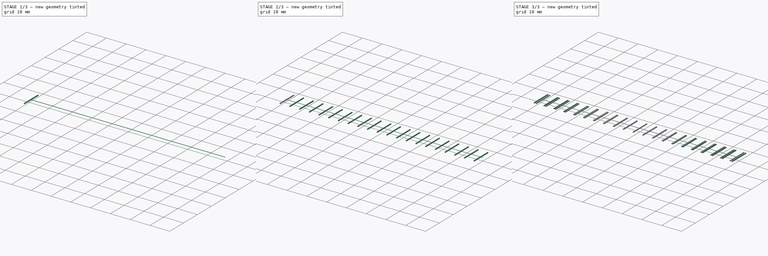
[diagram: build sequence overview — one tinted view per stage of 3, left to right]
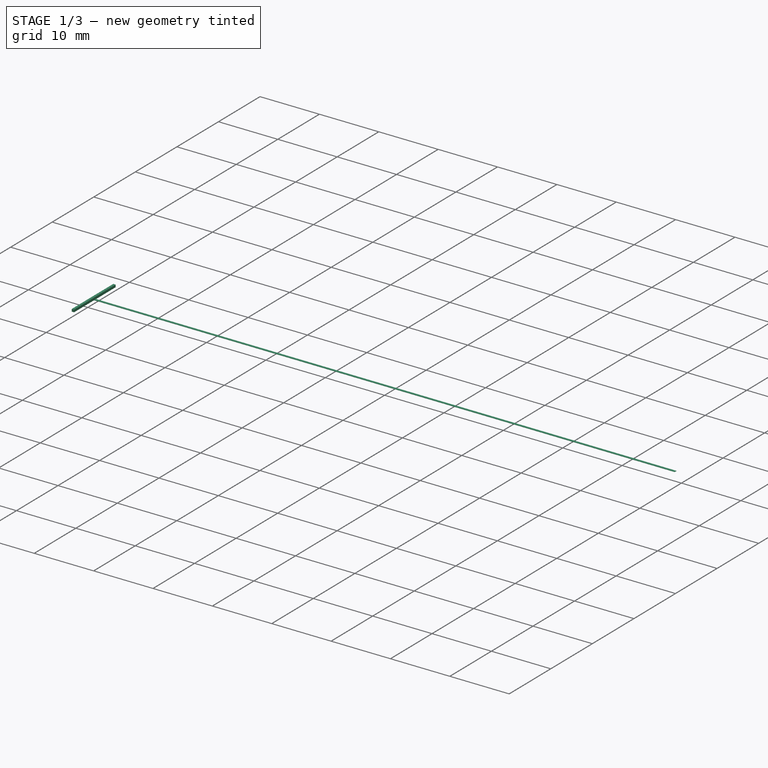
[diagram: stage 1 of 3 — iso view after this stage's code; geometry added in this stage tinted green]
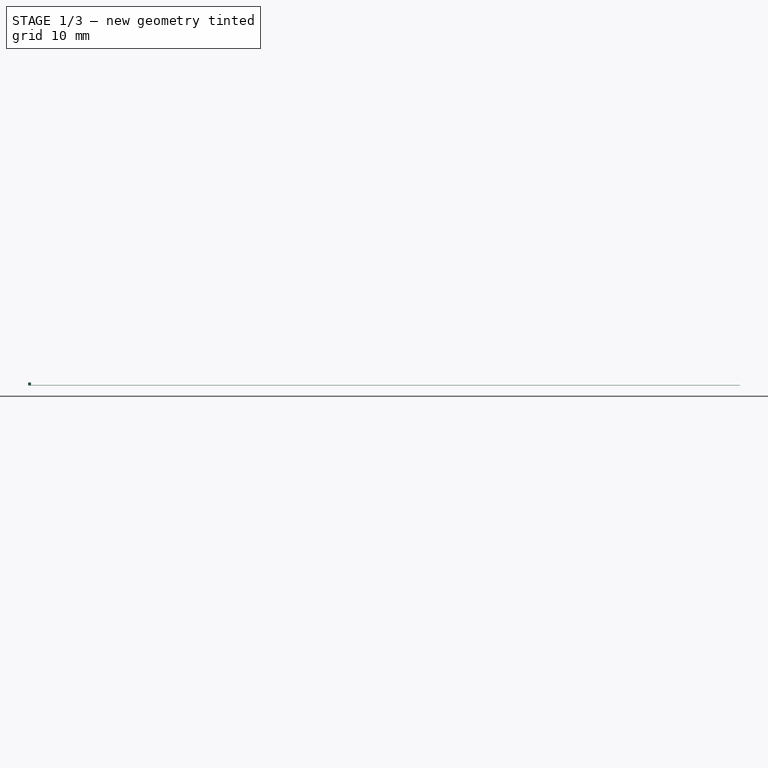
[diagram: stage 1 of 3 — front view after this stage's code; geometry added in this stage tinted green]
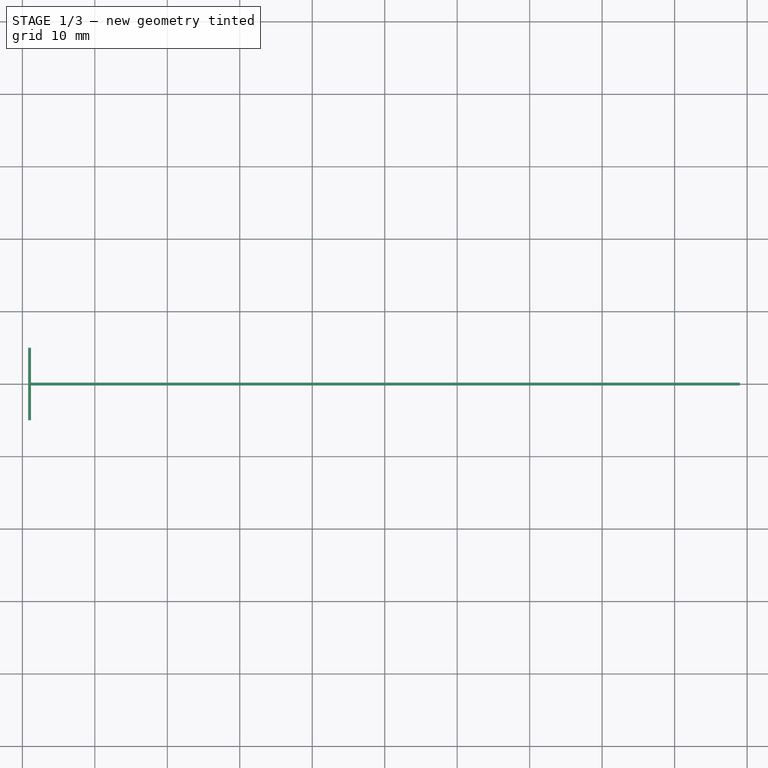
[diagram: stage 1 of 3 — top view after this stage's code; geometry added in this stage tinted green]
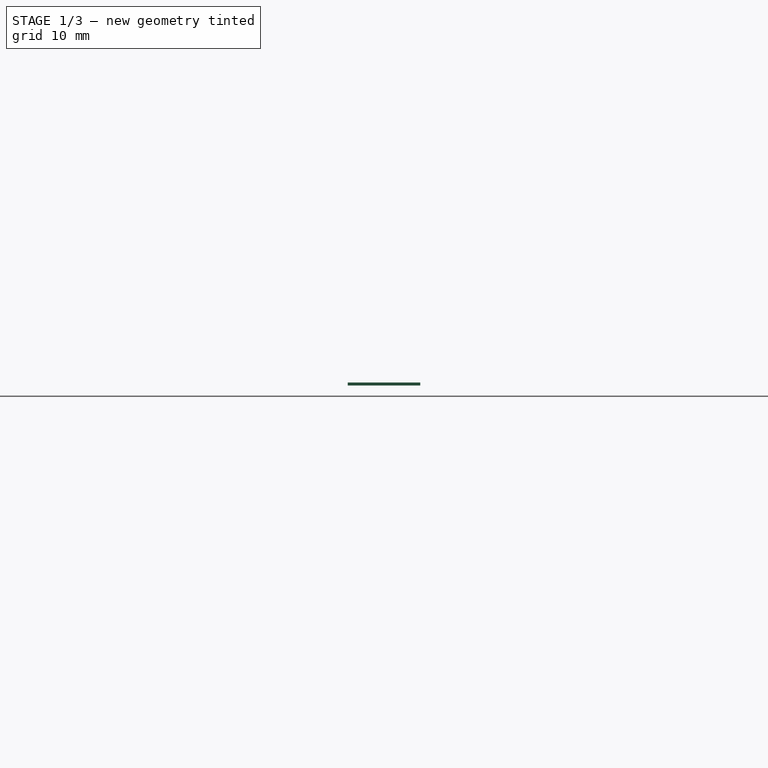
[diagram: stage 1 of 3 — right view after this stage's code; geometry added in this stage tinted green]
FCSTD DOCUMENT  (FreeCAD 0.18.4R)
Label: AlignmantTest
License: All rights reserved
LicenseURL: http://en.wikipedia.org/wiki/All_rights_reserved
objects: Sketcher::SketchObject×4, PartDesign::Pad×4, PartDesign::LinearPattern×2, PartDesign::Body×2
note: 16 computed .brp shape members not serialized (recipe doc carries the construction recipe); baked Part::Feature solids carry a one-line shape summary decoded from their .brp

FEATURE [PartDesign::Body] Body
  Group = -> [Sketch,Pad,Sketch001,Pad001,LinearPattern]
  Origin = -> Origin
  Placement = pos=(0,5.1,0) rot=(0,0,1;0rad)
  Tip = -> LinearPattern
FEATURE [Sketcher::SketchObject] Sketch002
  MapMode = 5
  Support = -> [XY_Plane001]
  sketch-geometry (9):
    g0: LineSegment [constr] StartX=-49.2 StartY=5 StartZ=0 EndX=-48.8 EndY=5 EndZ=0
    g1: LineSegment [constr] StartX=-48.8 StartY=5 StartZ=0 EndX=-48.8 EndY=-5 EndZ=0
    g2: LineSegment [constr] StartX=-48.8 StartY=-5 StartZ=0 EndX=-49.2 EndY=-5 EndZ=0
    g3: LineSegment [constr] StartX=-49.2 StartY=-5 StartZ=0 EndX=-49.2 EndY=5 EndZ=0
    g4: LineSegment StartX=-49 StartY=0.2 StartZ=0 EndX=49 EndY=0.2 EndZ=0
    g5: LineSegment StartX=49 StartY=0.2 StartZ=0 EndX=49 EndY=-0.2 EndZ=0
    g6: LineSegment StartX=49 StartY=-0.2 StartZ=0 EndX=-49 EndY=-0.2 EndZ=0
    g7: LineSegment StartX=-49 StartY=-0.2 StartZ=0 EndX=-49 EndY=0.2 EndZ=0
    g8: GeomPoint X=-49 Y=5 Z=0
  constraints (23):
    c: Coincident(g0,g1)
    c: Coincident(g1,g2)
    c: Coincident(g2,g3)
    c: Coincident(g3,g0)
    c: Horizontal(g2)
    c: Vertical(g1)
    c: DistanceX(g0,g0) = 0.4
    c: DistanceY(g3,g3) = 10
    c: Coincident(g4,g5)
    c: Coincident(g5,g6)
    c: Coincident(g6,g7)
    c: Coincident(g7,g4)
    c: Horizontal(g4)
    c: Horizontal(g6)
    c: Vertical(g7)
    c: Equal(g7,g2)
    c: DistanceX(g6,g6) = 98  'Length'
    c: Symmetric(g4,g5,g-1)
    c: Vertical(g5)
    c: Horizontal(g0)
    c: Symmetric(g0,g2,g-1)
    c: Symmetric(g0,g0,g8)
    c: PointOnObject(g8,g7)
FEATURE [Sketcher::SketchObject] Sketch003
  MapMode = 5
  Support = -> [XY_Plane001]
  expr: Constraints[16] = Sketch002.Constraints.Length
  sketch-geometry (9):
    g0: LineSegment StartX=-49.2 StartY=5 StartZ=0 EndX=-48.8 EndY=5 EndZ=0
    g1: LineSegment StartX=-48.8 StartY=5 StartZ=0 EndX=-48.8 EndY=-5 EndZ=0
    g2: LineSegment StartX=-48.8 StartY=-5 StartZ=0 EndX=-49.2 EndY=-5 EndZ=0
    g3: LineSegment StartX=-49.2 StartY=-5 StartZ=0 EndX=-49.2 EndY=5 EndZ=0
    g4: LineSegment [constr] StartX=-49 StartY=0.2 StartZ=0 EndX=49 EndY=0.2 EndZ=0
    g5: LineSegment [constr] StartX=49 StartY=0.2 StartZ=0 EndX=49 EndY=-0.2 EndZ=0
    g6: LineSegment [constr] StartX=49 StartY=-0.2 StartZ=0 EndX=-49 EndY=-0.2 EndZ=0
    g7: LineSegment [constr] StartX=-49 StartY=-0.2 StartZ=0 EndX=-49 EndY=0.2 EndZ=0
    g8: GeomPoint X=-49 Y=5 Z=0
  constraints (23):
    c: Coincident(g0,g1)
    c: Coincident(g1,g2)
    c: Coincident(g2,g3)
    c: Coincident(g3,g0)
    c: Horizontal(g2)
    c: Vertical(g1)
    c: DistanceX(g0,g0) = 0.4
    c: DistanceY(g3,g3) = 10
    c: Coincident(g4,g5)
    c: Coincident(g5,g6)
    c: Coincident(g6,g7)
    c: Coincident(g7,g4)
    c: Horizontal(g4)
    c: Horizontal(g6)
    c: Vertical(g7)
    c: Equal(g7,g2)
    c: DistanceX(g6,g6) = 98
    c: Symmetric(g4,g5,g-1)
    c: Vertical(g5)
    c: Horizontal(g0)
    c: Symmetric(g0,g2,g-1)
    c: Symmetric(g0,g0,g8)
    c: PointOnObject(g8,g7)
FEATURE [PartDesign::Pad] Pad002
  Length = 0.05
  Length2 = 100
  Profile = -> Sketch002
  Type = 0
FEATURE [PartDesign::Pad] Pad003
  BaseFeature = -> Pad002
  Length = 0.4
  Length2 = 100
  Profile = -> Sketch003
  Type = 0
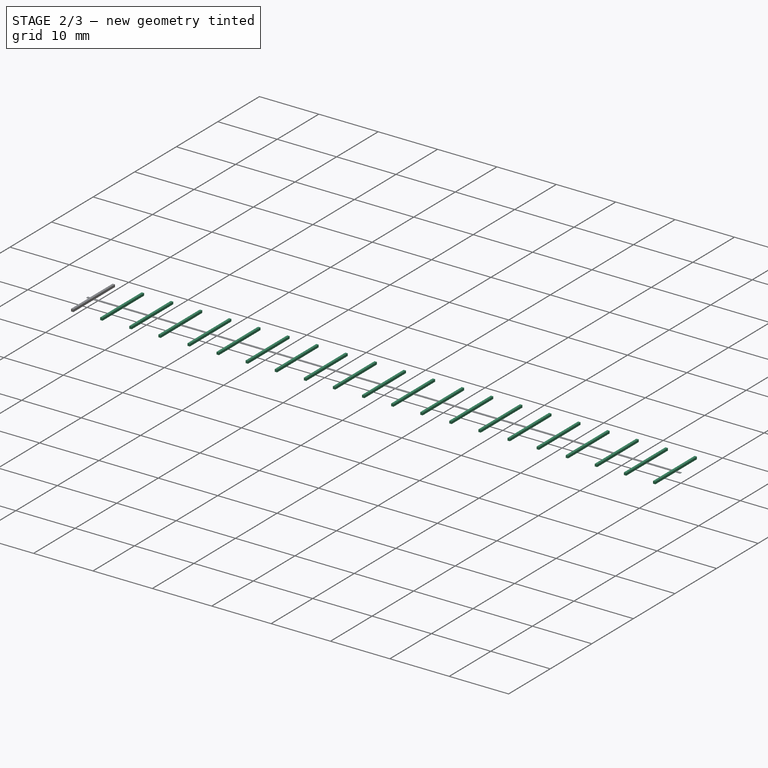
[diagram: stage 2 of 3 — iso view after this stage's code; geometry added in this stage tinted green]
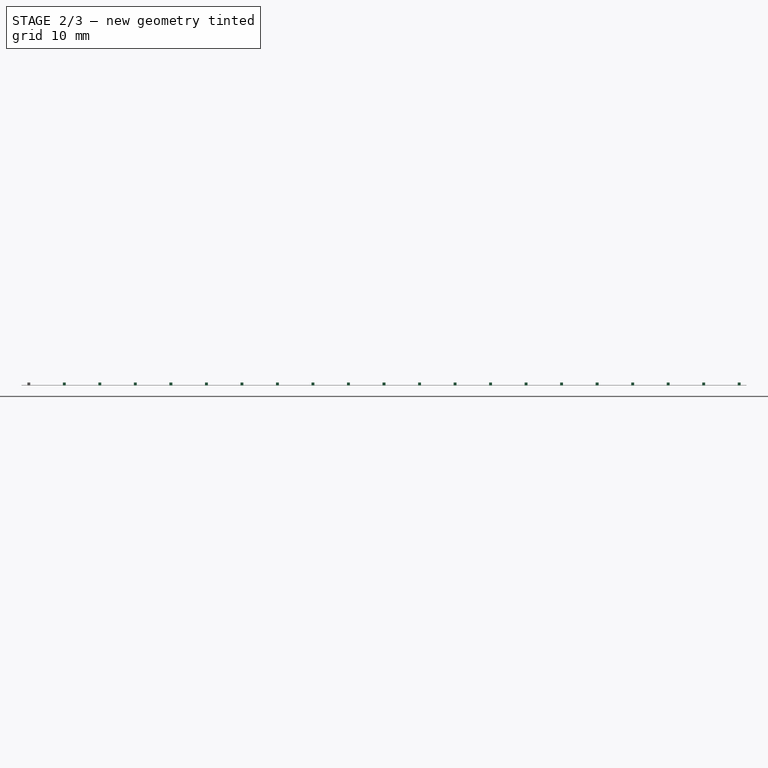
[diagram: stage 2 of 3 — front view after this stage's code; geometry added in this stage tinted green]
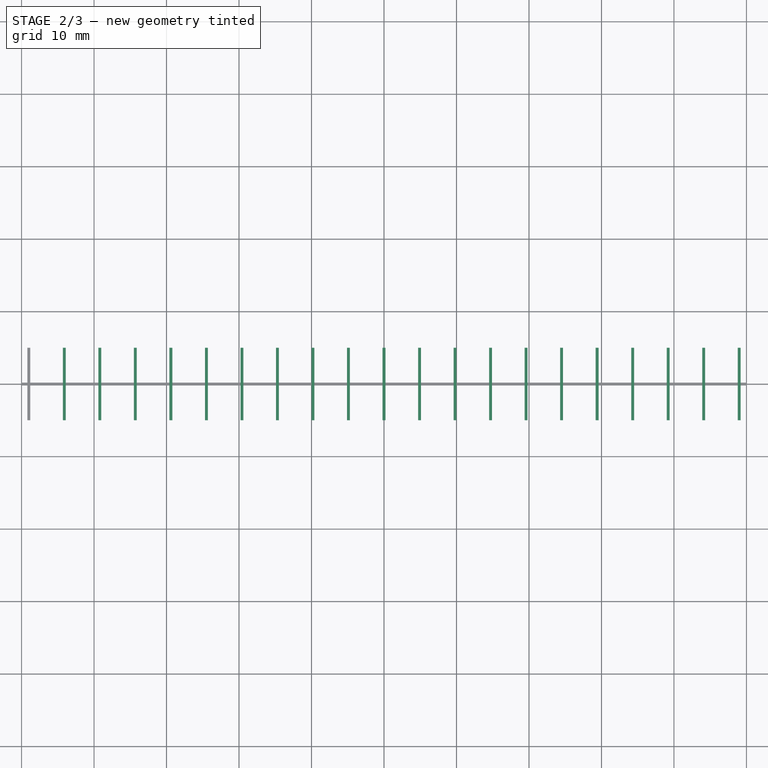
[diagram: stage 2 of 3 — top view after this stage's code; geometry added in this stage tinted green]
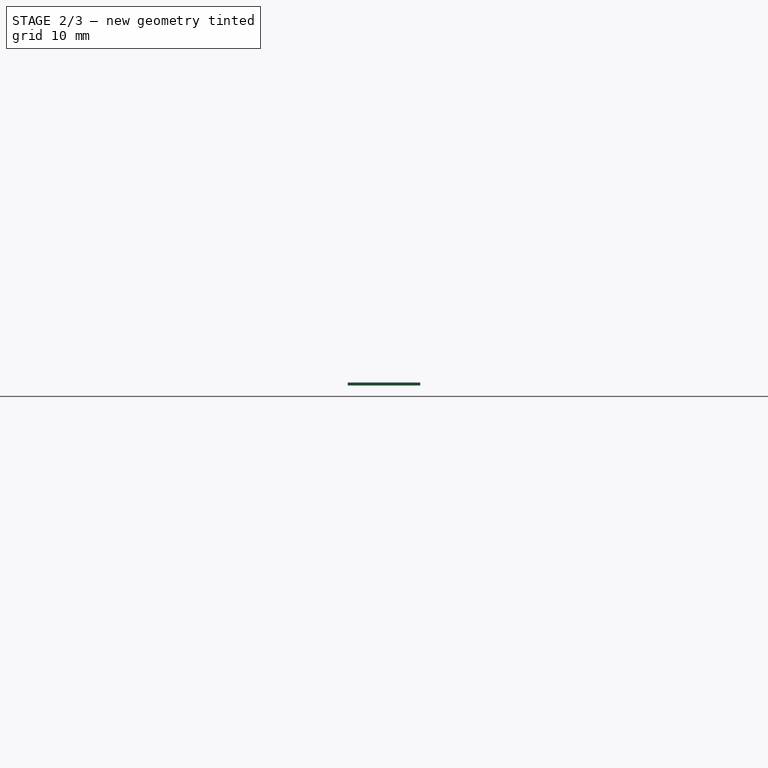
[diagram: stage 2 of 3 — right view after this stage's code; geometry added in this stage tinted green]
FEATURE [Sketcher::SketchObject] Sketch
  MapMode = 5
  Support = -> [XY_Plane]
  sketch-geometry (9):
    g0: LineSegment [constr] StartX=-50.2 StartY=5 StartZ=0 EndX=-49.8 EndY=5 EndZ=0
    g1: LineSegment [constr] StartX=-49.8 StartY=5 StartZ=0 EndX=-49.8 EndY=-5 EndZ=0
    g2: LineSegment [constr] StartX=-49.8 StartY=-5 StartZ=0 EndX=-50.2 EndY=-5 EndZ=0
    g3: LineSegment [constr] StartX=-50.2 StartY=-5 StartZ=0 EndX=-50.2 EndY=5 EndZ=0
    g4: LineSegment StartX=-50 StartY=0.2 StartZ=0 EndX=50 EndY=0.2 EndZ=0
    g5: LineSegment StartX=50 StartY=0.2 StartZ=0 EndX=50 EndY=-0.2 EndZ=0
    g6: LineSegment StartX=50 StartY=-0.2 StartZ=0 EndX=-50 EndY=-0.2 EndZ=0
    g7: LineSegment StartX=-50 StartY=-0.2 StartZ=0 EndX=-50 EndY=0.2 EndZ=0
    g8: GeomPoint X=-50 Y=5 Z=0
  constraints (23):
    c: Coincident(g0,g1)
    c: Coincident(g1,g2)
    c: Coincident(g2,g3)
    c: Coincident(g3,g0)
    c: Horizontal(g2)
    c: Vertical(g1)
    c: DistanceX(g0,g0) = 0.4
    c: DistanceY(g3,g3) = 10
    c: Coincident(g4,g5)
    c: Coincident(g5,g6)
    c: Coincident(g6,g7)
    c: Coincident(g7,g4)
    c: Horizontal(g4)
    c: Horizontal(g6)
    c: Vertical(g7)
    c: Equal(g7,g2)
    c: DistanceX(g6,g6) = 100  'Length'
    c: Symmetric(g4,g5,g-1)
    c: Vertical(g5)
    c: Horizontal(g0)
    c: Symmetric(g0,g2,g-1)
    c: Symmetric(g0,g0,g8)
    c: PointOnObject(g8,g7)
FEATURE [PartDesign::Pad] Pad
  Length = 0.05
  Length2 = 100
  Profile = -> Sketch
  Type = 0
FEATURE [PartDesign::LinearPattern] LinearPattern001
  BaseFeature = -> Pad003
  Direction = -> Sketch003 [H_Axis]
  Length = 98
  Occurrences = 21
  Originals = -> [Pad003]
  expr: Length = Sketch002.Constraints.Length
FEATURE [PartDesign::Body] Body001
  Group = -> [Sketch002,Sketch003,Pad002,Pad003,LinearPattern001]
  Origin = -> Origin001
  Placement = pos=(0,-5.1,0) rot=(0,0,1;0rad)
  Tip = -> LinearPattern001
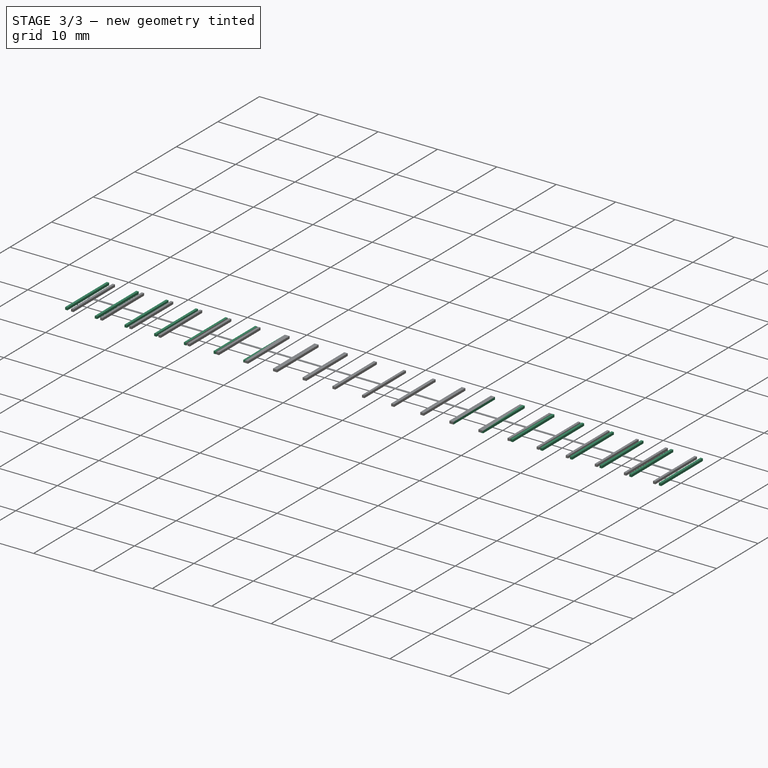
[diagram: stage 3 of 3 — iso view after this stage's code; geometry added in this stage tinted green]
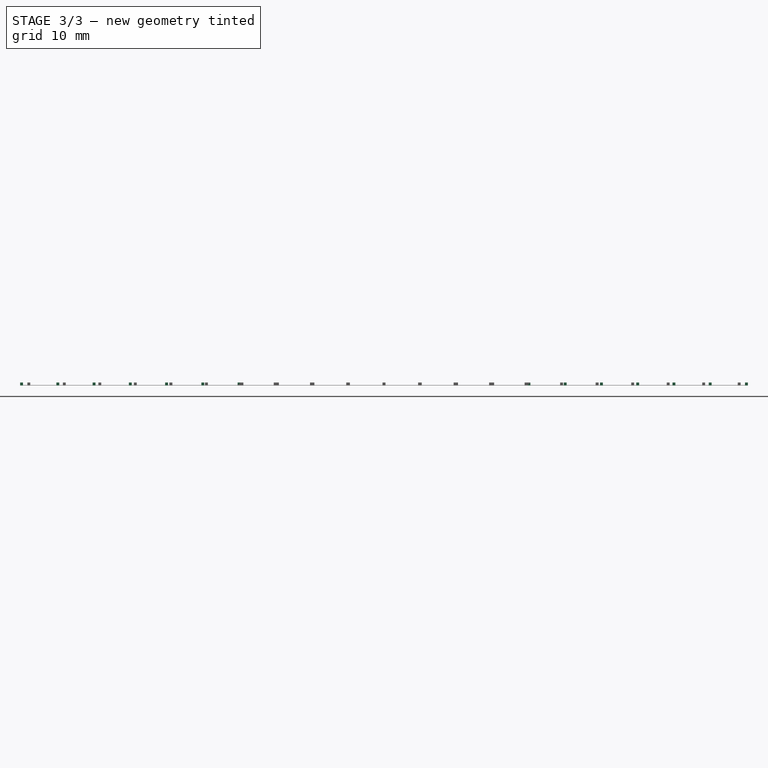
[diagram: stage 3 of 3 — front view after this stage's code; geometry added in this stage tinted green]
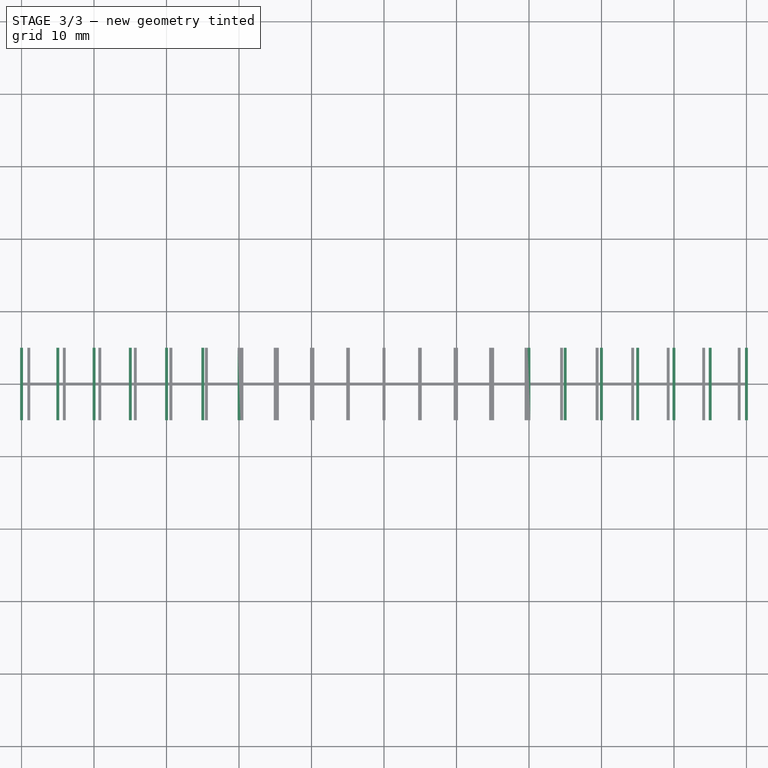
[diagram: stage 3 of 3 — top view after this stage's code; geometry added in this stage tinted green]
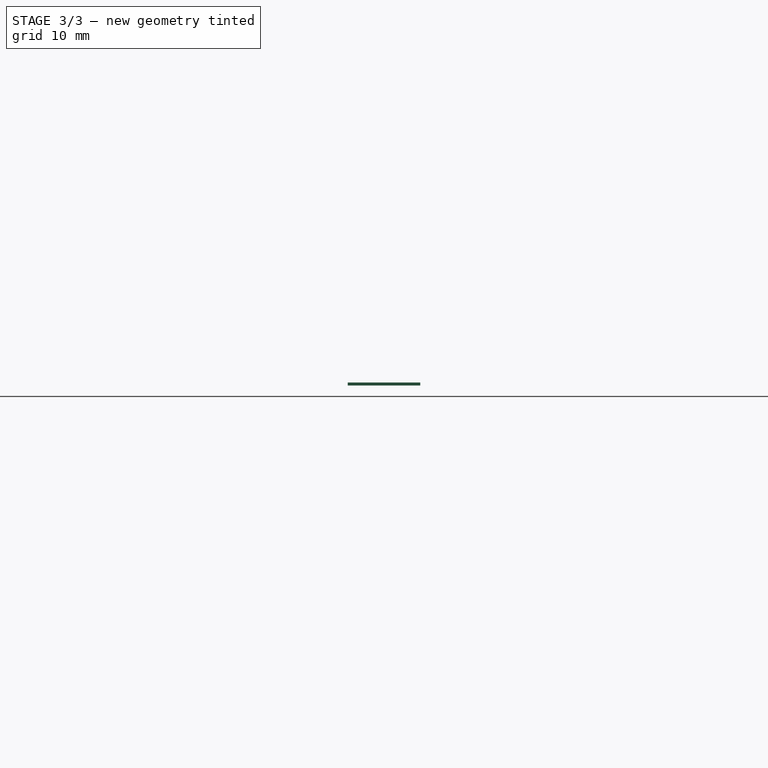
[diagram: stage 3 of 3 — right view after this stage's code; geometry added in this stage tinted green]
FEATURE [Sketcher::SketchObject] Sketch001
  MapMode = 5
  Support = -> [XY_Plane]
  expr: Constraints[16] = Sketch.Constraints.Length
  sketch-geometry (9):
    g0: LineSegment StartX=-50.2 StartY=5 StartZ=0 EndX=-49.8 EndY=5 EndZ=0
    g1: LineSegment StartX=-49.8 StartY=5 StartZ=0 EndX=-49.8 EndY=-5 EndZ=0
    g2: LineSegment StartX=-49.8 StartY=-5 StartZ=0 EndX=-50.2 EndY=-5 EndZ=0
    g3: LineSegment StartX=-50.2 StartY=-5 StartZ=0 EndX=-50.2 EndY=5 EndZ=0
    g4: LineSegment [constr] StartX=-50 StartY=0.2 StartZ=0 EndX=50 EndY=0.2 EndZ=0
    g5: LineSegment [constr] StartX=50 StartY=0.2 StartZ=0 EndX=50 EndY=-0.2 EndZ=0
    g6: LineSegment [constr] StartX=50 StartY=-0.2 StartZ=0 EndX=-50 EndY=-0.2 EndZ=0
    g7: LineSegment [constr] StartX=-50 StartY=-0.2 StartZ=0 EndX=-50 EndY=0.2 EndZ=0
    g8: GeomPoint X=-50 Y=5 Z=0
  constraints (23):
    c: Coincident(g0,g1)
    c: Coincident(g1,g2)
    c: Coincident(g2,g3)
    c: Coincident(g3,g0)
    c: Horizontal(g2)
    c: Vertical(g1)
    c: DistanceX(g0,g0) = 0.4
    c: DistanceY(g3,g3) = 10
    c: Coincident(g4,g5)
    c: Coincident(g5,g6)
    c: Coincident(g6,g7)
    c: Coincident(g7,g4)
    c: Horizontal(g4)
    c: Horizontal(g6)
    c: Vertical(g7)
    c: Equal(g7,g2)
    c: DistanceX(g6,g6) = 100
    c: Symmetric(g4,g5,g-1)
    c: Vertical(g5)
    c: Horizontal(g0)
    c: Symmetric(g0,g2,g-1)
    c: Symmetric(g0,g0,g8)
    c: PointOnObject(g8,g7)
FEATURE [PartDesign::Pad] Pad001
  BaseFeature = -> Pad
  Length = 0.4
  Length2 = 100
  Profile = -> Sketch001
  Type = 0
FEATURE [PartDesign::LinearPattern] LinearPattern
  BaseFeature = -> Pad001
  Direction = -> Sketch001 [H_Axis]
  Length = 100
  Occurrences = 21
  Originals = -> [Pad001]
  expr: Length = Sketch.Constraints.Length
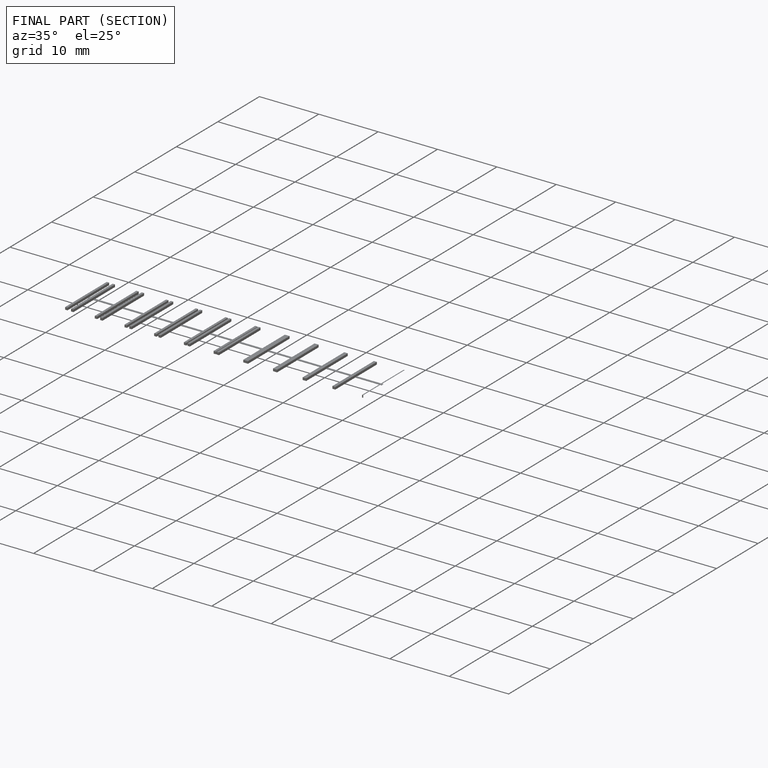
[diagram: finished part — half-section view (interior)]
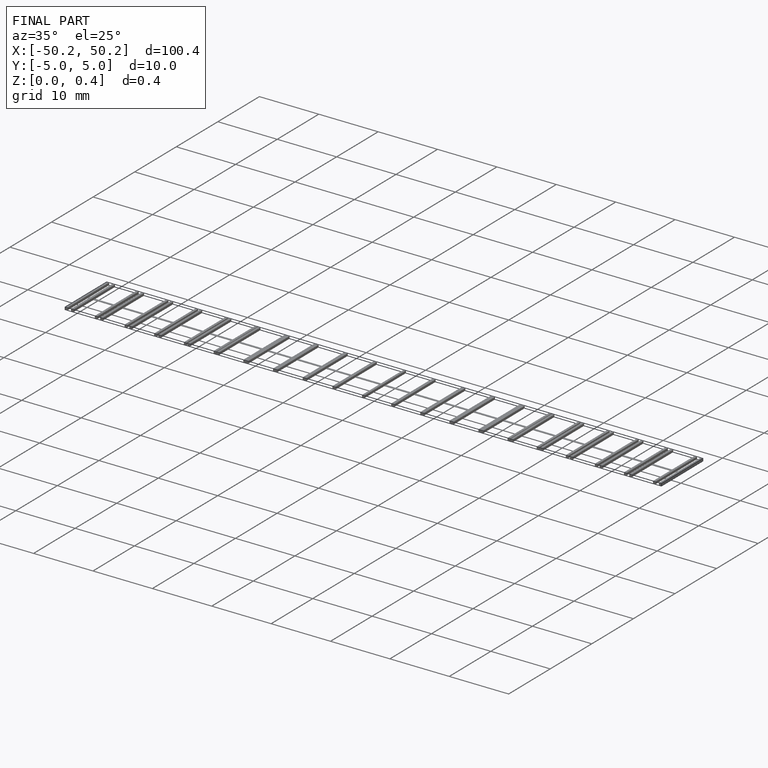
[diagram: finished part — iso view with bounding-box wireframe]
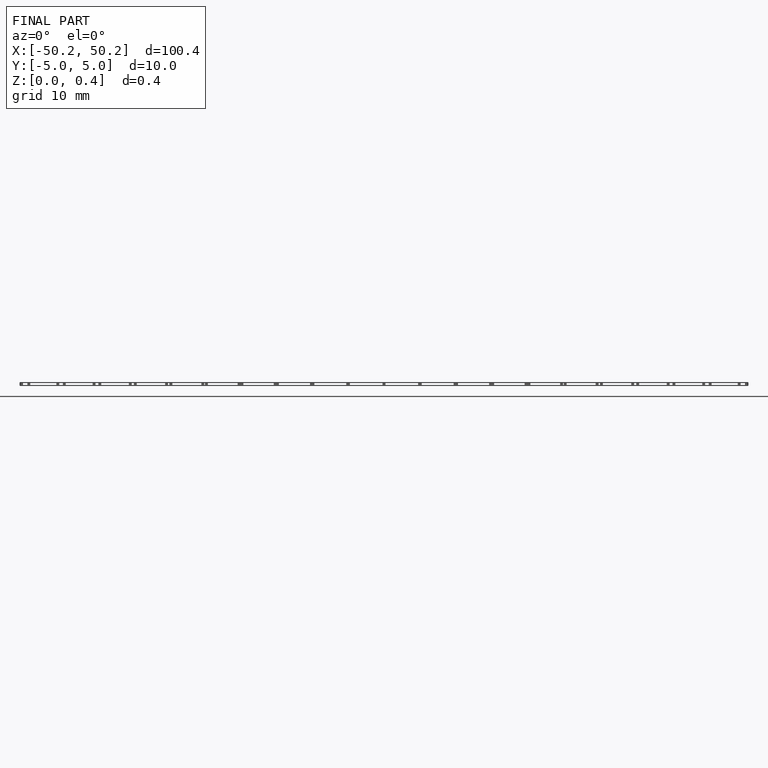
[diagram: finished part — front view with bounding-box wireframe]
